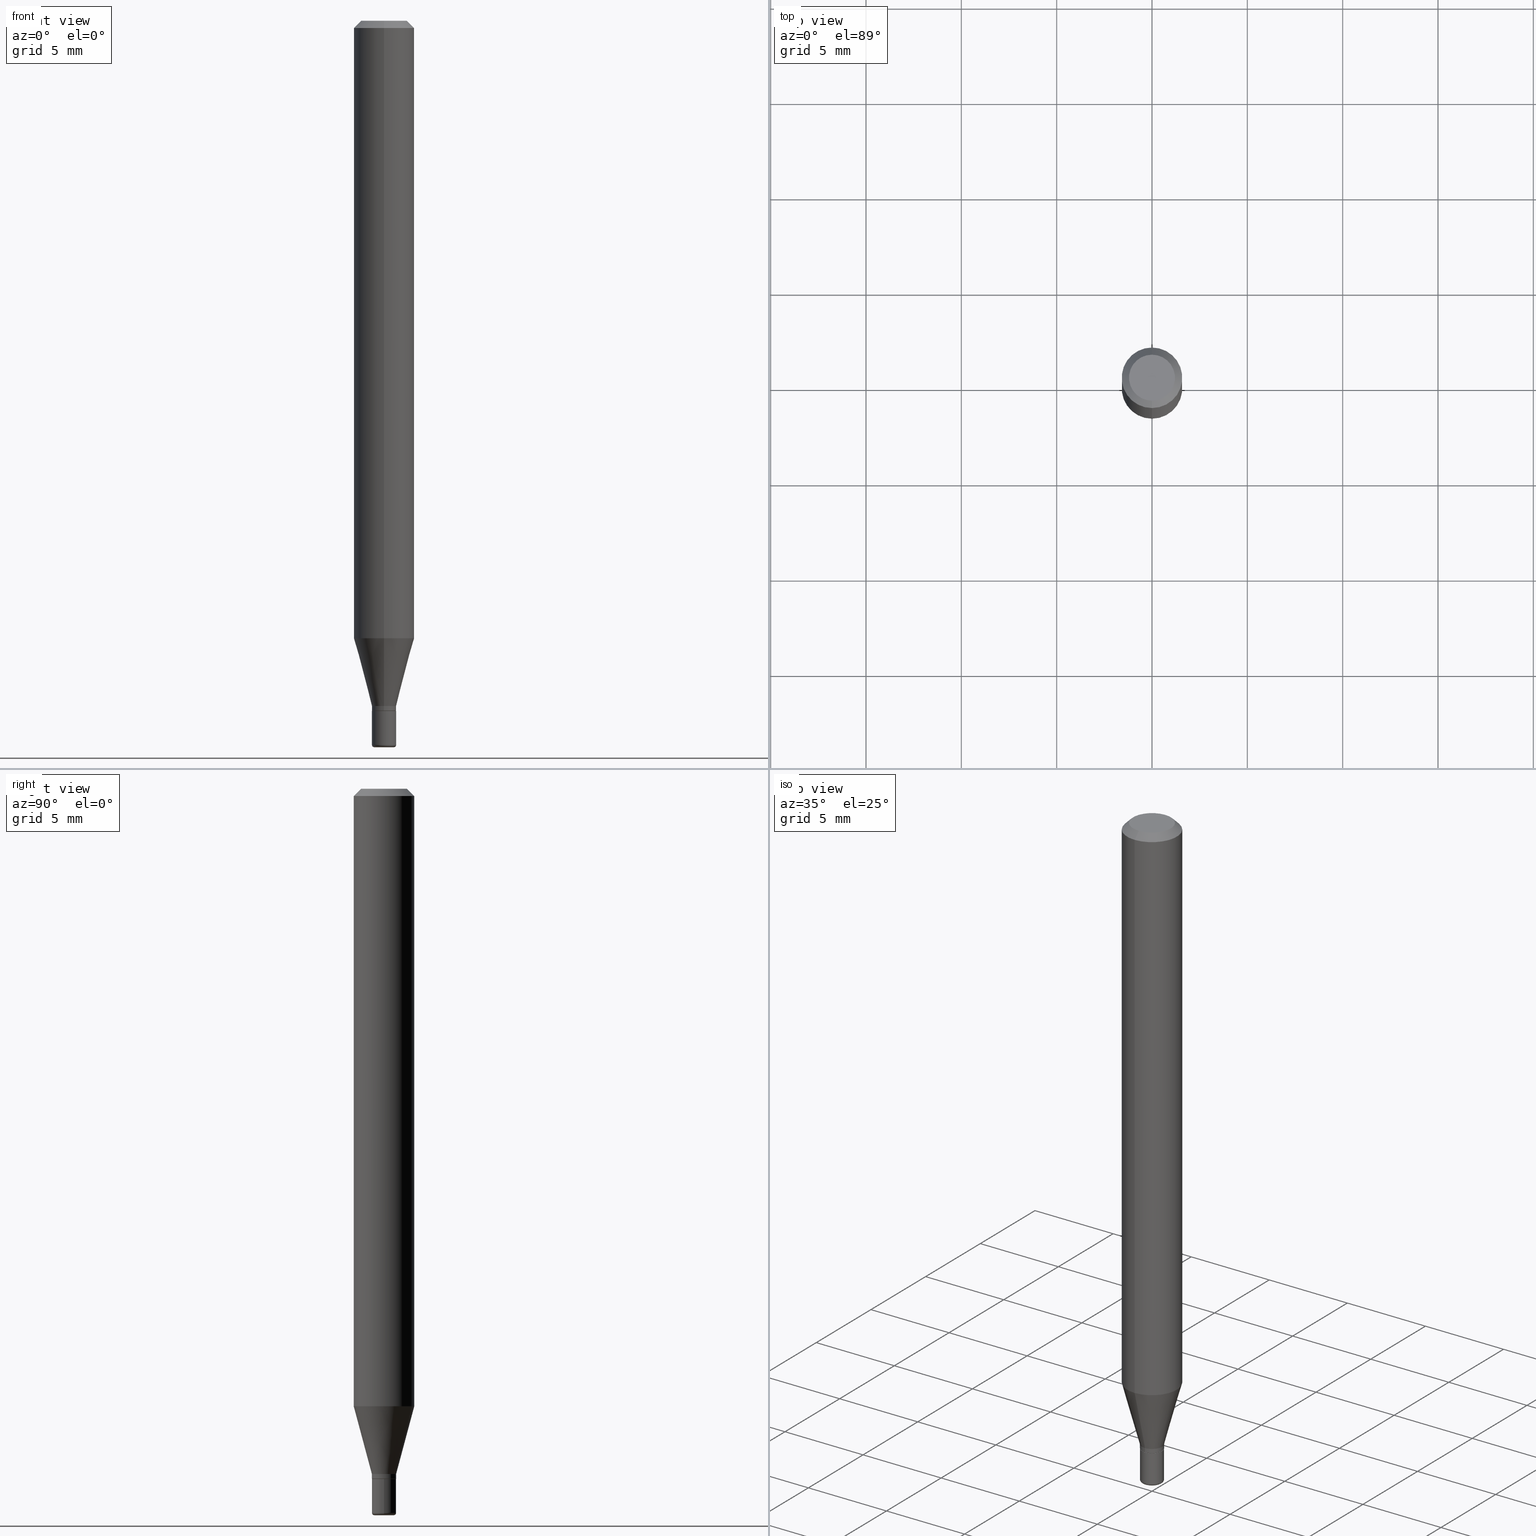
[diagram: canonical four-view strip — front | top / right | iso, engineering-drawing reading convention]
A machine part, canonical four-view strip (front | top / right | iso — engineering-drawing reading convention). The complete STEP part file that produces these views, byte-faithful:
ISO-10303-21;
HEADER;
FILE_DESCRIPTION (( 'STEP AP203' ),
    '1' );
FILE_NAME ('08662.STEP',
    '2024-02-29T20:14:09',
    ( '' ),
    ( '' ),
    'SwSTEP 2.0',
    'SolidWorks 2023',
    '' );
FILE_SCHEMA (( 'CONFIG_CONTROL_DESIGN' ));
ENDSEC;

DATA;
#1 = AXIS2_PLACEMENT_3D ( 'NONE', #361, #288, #487 ) ;
#2 = VECTOR ( 'NONE', #176, 39.37007874015748143 ) ;
#3 = PERSON_AND_ORGANIZATION ( #350, #386 ) ;
#4 = DIRECTION ( 'NONE',  ( -4.851104656540966641E-15, -0.7071067811865503483, -0.7071067811865446862 ) ) ;
#5 = PRODUCT ( '08662', '08662', '', ( #165 ) ) ;
#6 = DIRECTION ( 'NONE',  ( 0.000000000000000000, 0.000000000000000000, 1.000000000000000000 ) ) ;
#7 = DIRECTION ( 'NONE',  ( -1.000000000000000000, 7.105427357601061812E-15, 0.000000000000000000 ) ) ;
#8 = EDGE_CURVE ( 'NONE', #457, #405, #274, .T. ) ;
#9 = ORIENTED_EDGE ( 'NONE', *, *, #227, .F. ) ;
#10 = CALENDAR_DATE ( 2024, 29, 2 ) ;
#11 = CARTESIAN_POINT ( 'NONE',  ( 3.655975865246779683E-29, -5.219764601570503930E-15, -1.495000000000000329 ) ) ;
#12 = ORIENTED_EDGE ( 'NONE', *, *, #8, .T. ) ;
#13 = CLOSED_SHELL ( 'NONE', ( #187, #104, #489, #429, #193, #400, #147, #418, #481, #468, #249, #437 ) ) ;
#14 = EDGE_CURVE ( 'NONE', #474, #217, #20, .T. ) ;
#15 = CARTESIAN_POINT ( 'NONE',  ( -0.02000000000000000042, -5.068621189371588369E-15, -1.500000000000000444 ) ) ;
#16 = ORIENTED_EDGE ( 'NONE', *, *, #167, .F. ) ;
#17 = CARTESIAN_POINT ( 'NONE',  ( 1.776356839400603332E-16, 0.02499999999999516151, -1.415000000000000258 ) ) ;
#18 = EDGE_LOOP ( 'NONE', ( #232, #294 ) ) ;
#19 = CARTESIAN_POINT ( 'NONE',  ( -3.773273898774340269E-16, -0.04750000000000000749, 4.390195805009133719E-16 ) ) ;
#20 = LINE ( 'NONE', #223, #470 ) ;
#21 = AXIS2_PLACEMENT_3D ( 'NONE', #150, #34, #269 ) ;
#22 = DIRECTION ( 'NONE',  ( -2.445468806185136597E-29, 3.491481338843145583E-15, 1.000000000000000000 ) ) ;
#23 = ORIENTED_EDGE ( 'NONE', *, *, #267, .T. ) ;
#24 = DIRECTION ( 'NONE',  ( -2.445546592424236773E-29, 3.491369944521436528E-15, 1.000000000000000000 ) ) ;
#25 = APPROVAL ( #47, 'UNSPECIFIED' ) ;
#26 = ORIENTED_EDGE ( 'NONE', *, *, #339, .F. ) ;
#27 = CC_DESIGN_APPROVAL ( #342, ( #130 ) ) ;
#28 = CARTESIAN_POINT ( 'NONE',  ( 3.484903894204537597E-29, -4.975202170943048176E-15, -1.425000000000000266 ) ) ;
#29 = ORIENTED_EDGE ( 'NONE', *, *, #207, .F. ) ;
#30 = AXIS2_PLACEMENT_3D ( 'NONE', #369, #407, #198 ) ;
#31 =( CONVERSION_BASED_UNIT ( 'INCH', #469 ) LENGTH_UNIT ( ) NAMED_UNIT ( #125 ) );
#32 = AXIS2_PLACEMENT_3D ( 'NONE', #309, #389, #228 ) ;
#33 = CARTESIAN_POINT ( 'NONE',  ( 3.668319888636282221E-31, -5.237054916782051820E-17, -0.01499999999999970281 ) ) ;
#34 = DIRECTION ( 'NONE',  ( 2.445546592424236212E-29, -3.491369944521436528E-15, -1.000000000000000000 ) ) ;
#35 =( NAMED_UNIT ( * ) PLANE_ANGLE_UNIT ( ) SI_UNIT ( $, .RADIAN. ) );
#36 = ORIENTED_EDGE ( 'NONE', *, *, #207, .T. ) ;
#37 = AXIS2_PLACEMENT_3D ( 'NONE', #246, #278, #399 ) ;
#38 = APPLICATION_PROTOCOL_DEFINITION ( 'international standard', 'config_control_design', 1994, #83 ) ;
#39 = DIRECTION ( 'NONE',  ( 1.000000000000000000, -6.982962677686283277E-15, 4.883557194083118506E-29 ) ) ;
#40 = SECURITY_CLASSIFICATION_LEVEL ( 'unclassified' ) ;
#41 = DIRECTION ( 'NONE',  ( -2.445468806185136597E-29, 3.491481338843145583E-15, 1.000000000000000000 ) ) ;
#42 = CARTESIAN_POINT ( 'NONE',  ( 3.484903894204537597E-29, -4.975202170943048176E-15, -1.425000000000000266 ) ) ;
#43 = VECTOR ( 'NONE', #258, 39.37007874015748143 ) ;
#44 = CARTESIAN_POINT ( 'NONE',  ( 0.000000000000000000, 0.000000000000000000, 0.000000000000000000 ) ) ;
#45 =( GEOMETRIC_REPRESENTATION_CONTEXT ( 3 ) GLOBAL_UNCERTAINTY_ASSIGNED_CONTEXT ( ( #81 ) ) GLOBAL_UNIT_ASSIGNED_CONTEXT ( ( #31, #35, #356 ) ) REPRESENTATION_CONTEXT ( 'NONE', 'WORKASPACE' ) );
#46 = ORIENTED_EDGE ( 'NONE', *, *, #219, .F. ) ;
#47 = APPROVAL_STATUS ( 'not_yet_approved' ) ;
#48 = DIRECTION ( 'NONE',  ( -6.982962677686265922E-15, -1.000000000000000000, 0.000000000000000000 ) ) ;
#49 = DIRECTION ( 'NONE',  ( -6.982962677686265922E-15, -1.000000000000000000, 0.000000000000000000 ) ) ;
#50 = CIRCLE ( 'NONE', #422, 0.02500000000000010200 ) ;
#51 = VERTEX_POINT ( 'NONE', #388 ) ;
#52 = AXIS2_PLACEMENT_3D ( 'NONE', #376, #336, #49 ) ;
#53 = LINE ( 'NONE', #17, #95 ) ;
#54 = EDGE_LOOP ( 'NONE', ( #26, #215, #173, #143 ) ) ;
#55 = CARTESIAN_POINT ( 'NONE',  ( 3.484793048813820547E-29, -4.975360907851483175E-15, -1.425000000000000266 ) ) ;
#56 = ORIENTED_EDGE ( 'NONE', *, *, #273, .F. ) ;
#57 = DIRECTION ( 'NONE',  ( -6.982962677686265922E-15, -1.000000000000000000, 0.000000000000000000 ) ) ;
#58 = ORIENTED_EDGE ( 'NONE', *, *, #293, .T. ) ;
#59 = AXIS2_PLACEMENT_3D ( 'NONE', #174, #216, #374 ) ;
#60 = DIRECTION ( 'NONE',  ( 1.000000000000000000, -6.982962677686284065E-15, 0.000000000000000000 ) ) ;
#61 = ORIENTED_EDGE ( 'NONE', *, *, #308, .F. ) ;
#62 = DIRECTION ( 'NONE',  ( -6.982962677686265922E-15, -1.000000000000000000, 3.491369944521436528E-15 ) ) ;
#63 = ORIENTED_EDGE ( 'NONE', *, *, #134, .F. ) ;
#64 = EDGE_CURVE ( 'NONE', #244, #380, #50, .T. ) ;
#65 =( LENGTH_UNIT ( ) NAMED_UNIT ( * ) SI_UNIT ( $, .METRE. ) );
#66 = AXIS2_PLACEMENT_3D ( 'NONE', #122, #327, #48 ) ;
#67 = CYLINDRICAL_SURFACE ( 'NONE', #32, 0.02500000000000009506 ) ;
#68 = CONICAL_SURFACE ( 'NONE', #117, 0.06250000000000000000, 0.7853981633974488341 ) ;
#69 = FACE_OUTER_BOUND ( 'NONE', #18, .T. ) ;
#70 = EDGE_CURVE ( 'NONE', #103, #170, #511, .T. ) ;
#71 = ORIENTED_EDGE ( 'NONE', *, *, #321, .F. ) ;
#72 = PERSON_AND_ORGANIZATION_ROLE ( 'classification_officer' ) ;
#73 = AXIS2_PLACEMENT_3D ( 'NONE', #484, #128, #284 ) ;
#74 = DIRECTION ( 'NONE',  ( 4.937700262164550409E-15, 0.7071067811865454633, -0.7071067811865495711 ) ) ;
#75 = CC_DESIGN_PERSON_AND_ORGANIZATION_ASSIGNMENT ( #239, #112, ( #197 ) ) ;
#76 = COORDINATED_UNIVERSAL_TIME_OFFSET ( 5, 0, .BEHIND. ) ;
#77 = DIRECTION ( 'NONE',  ( -2.445546592424236492E-29, 3.491369944521436528E-15, 1.000000000000000000 ) ) ;
#78 = DIRECTION ( 'NONE',  ( 7.105427357601001859E-15, 1.000000000000000000, -3.491481338843145583E-15 ) ) ;
#79 = EDGE_CURVE ( 'NONE', #170, #334, #340, .T. ) ;
#80 = DIRECTION ( 'NONE',  ( -2.445546592424236492E-29, 3.491369944521436528E-15, 1.000000000000000000 ) ) ;
#81 = UNCERTAINTY_MEASURE_WITH_UNIT (LENGTH_MEASURE( 1.000000000000000082E-05 ), #31, 'distance_accuracy_value', 'NONE');
#82 = AXIS2_PLACEMENT_3D ( 'NONE', #460, #458, #96 ) ;
#83 = APPLICATION_CONTEXT ( 'configuration controlled 3d designs of mechanical parts and assemblies' ) ;
#84 = ORIENTED_EDGE ( 'NONE', *, *, #282, .T. ) ;
#85 = PERSON_AND_ORGANIZATION_ROLE ( 'creator' ) ;
#86 = DIRECTION ( 'NONE',  ( -2.445468806185136597E-29, 3.491481338843145583E-15, 1.000000000000000000 ) ) ;
#87 = AXIS2_PLACEMENT_3D ( 'NONE', #322, #6, #203 ) ;
#88 = ORIENTED_EDGE ( 'NONE', *, *, #279, .F. ) ;
#89 = CYLINDRICAL_SURFACE ( 'NONE', #305, 0.06250000000000000000 ) ;
#90 = ADVANCED_FACE ( 'NONE', ( #306 ), #472, .F. ) ;
#91 = MANIFOLD_SOLID_BREP ( 'Body-Move/Copy2[1]', #185 ) ;
#92 = DIRECTION ( 'NONE',  ( 1.000000000000000000, -6.982962677686254878E-15, 0.000000000000000000 ) ) ;
#93 = CIRCLE ( 'NONE', #66, 0.02500000000000009159 ) ;
#94 = ORIENTED_EDGE ( 'NONE', *, *, #236, .F. ) ;
#95 = VECTOR ( 'NONE', #341, 39.37007874015748854 ) ;
#96 = DIRECTION ( 'NONE',  ( -6.982962677686265133E-15, -1.000000000000000000, 3.491369944521436133E-15 ) ) ;
#97 = VERTEX_POINT ( 'NONE', #105 ) ;
#98 = EDGE_CURVE ( 'NONE', #457, #301, #478, .T. ) ;
#99 = DIRECTION ( 'NONE',  ( -2.445546592424236773E-29, 3.491369944521436528E-15, 1.000000000000000000 ) ) ;
#100 = ORIENTED_EDGE ( 'NONE', *, *, #219, .T. ) ;
#101 = ADVANCED_FACE ( 'NONE', ( #518 ), #240, .T. ) ;
#102 = DIRECTION ( 'NONE',  ( 1.000000000000000000, -6.982962677686283277E-15, 4.883557194083118506E-29 ) ) ;
#103 = VERTEX_POINT ( 'NONE', #206 ) ;
#104 = ADVANCED_FACE ( 'NONE', ( #443 ), #373, .T. ) ;
#105 = CARTESIAN_POINT ( 'NONE',  ( -0.02500000000000000139, -4.919927070770967954E-15, -1.425000000000000266 ) ) ;
#106 = PRODUCT_RELATED_PRODUCT_CATEGORY ( 'detail', '', ( #5 ) ) ;
#107 = DIRECTION ( 'NONE',  ( -2.445546592424236492E-29, 3.491369944521436528E-15, 1.000000000000000000 ) ) ;
#108 = CIRCLE ( 'NONE', #115, 0.02500000000000000139 ) ;
#109 = AXIS2_PLACEMENT_3D ( 'NONE', #507, #148, #392 ) ;
#110 = CARTESIAN_POINT ( 'NONE',  ( 3.582686580359767159E-29, -5.359686688179454114E-15, -1.500000000000000444 ) ) ;
#111 = EDGE_CURVE ( 'NONE', #343, #132, #438, .T. ) ;
#112 = PERSON_AND_ORGANIZATION_ROLE ( 'design_supplier' ) ;
#113 = ORIENTED_EDGE ( 'NONE', *, *, #14, .F. ) ;
#114 = APPROVAL_ROLE ( '' ) ;
#115 = AXIS2_PLACEMENT_3D ( 'NONE', #201, #41, #238 ) ;
#116 = CARTESIAN_POINT ( 'NONE',  ( 0.000000000000000000, 0.000000000000000000, 0.000000000000000000 ) ) ;
#117 = AXIS2_PLACEMENT_3D ( 'NONE', #430, #261, #427 ) ;
#118 = DATE_AND_TIME ( #365, #409 ) ;
#119 = FACE_OUTER_BOUND ( 'NONE', #425, .T. ) ;
#120 = ADVANCED_FACE ( 'NONE', ( #402 ), #190, .T. ) ;
#121 = APPROVAL_ROLE ( '' ) ;
#122 = CARTESIAN_POINT ( 'NONE',  ( 3.483681120908324643E-29, -4.973456485970787221E-15, -1.424500000000000099 ) ) ;
#123 = ORIENTED_EDGE ( 'NONE', *, *, #508, .T. ) ;
#124 = DIRECTION ( 'NONE',  ( -2.445546592424236492E-29, 3.491369944521436528E-15, 1.000000000000000000 ) ) ;
#125 = DIMENSIONAL_EXPONENTS ( 1.000000000000000000, 0.000000000000000000, 0.000000000000000000, 0.000000000000000000, 0.000000000000000000, 0.000000000000000000, 0.000000000000000000 ) ;
#126 = ORIENTED_EDGE ( 'NONE', *, *, #127, .T. ) ;
#127 = EDGE_CURVE ( 'NONE', #132, #97, #195, .T. ) ;
#128 = DIRECTION ( 'NONE',  ( -2.445468806185136597E-29, 3.491481338843145583E-15, 1.000000000000000000 ) ) ;
#129 = ORIENTED_EDGE ( 'NONE', *, *, #8, .F. ) ;
#130 = PRODUCT_DEFINITION ( 'UNKNOWN', '', #197, #431 ) ;
#131 = DIRECTION ( 'NONE',  ( -6.982962677686265922E-15, -1.000000000000000000, 3.483106191921935554E-15 ) ) ;
#132 = VERTEX_POINT ( 'NONE', #166 ) ;
#133 = DIRECTION ( 'NONE',  ( -2.445468806185136597E-29, 3.491481338843145583E-15, 1.000000000000000000 ) ) ;
#134 = EDGE_CURVE ( 'NONE', #170, #103, #403, .T. ) ;
#135 = VECTOR ( 'NONE', #332, 39.37007874015748143 ) ;
#136 = ORIENTED_EDGE ( 'NONE', *, *, #267, .F. ) ;
#137 = CIRCLE ( 'NONE', #109, 0.06250000000000000000 ) ;
#138 = CARTESIAN_POINT ( 'NONE',  ( 1.745740669421915009E-16, 0.02499999999999502620, -1.425000000000000266 ) ) ;
#139 = CC_DESIGN_PERSON_AND_ORGANIZATION_ASSIGNMENT ( #280, #85, ( #130 ) ) ;
#140 = DIRECTION ( 'NONE',  ( 1.000000000000000000, -6.982962677686265922E-15, 4.876176775795935793E-29 ) ) ;
#141 = CARTESIAN_POINT ( 'NONE',  ( 3.655975865246779122E-29, -5.219764601570503141E-15, -1.495000000000000107 ) ) ;
#142 = ADVANCED_BREP_SHAPE_REPRESENTATION ( '08662', ( #91, #441, #87 ), #45 ) ;
#143 = ORIENTED_EDGE ( 'NONE', *, *, #450, .F. ) ;
#144 = CARTESIAN_POINT ( 'NONE',  ( -4.364351673553912750E-16, -0.06250000000000005551, -0.01499999999999948597 ) ) ;
#145 = ORIENTED_EDGE ( 'NONE', *, *, #111, .F. ) ;
#146 = CONICAL_SURFACE ( 'NONE', #276, 0.02500000000000010200, 0.2617993877991493523 ) ;
#147 = ADVANCED_FACE ( 'NONE', ( #119 ), #89, .T. ) ;
#148 = DIRECTION ( 'NONE',  ( -2.445546592424236492E-29, 3.491369944521436528E-15, 1.000000000000000000 ) ) ;
#149 = CC_DESIGN_APPROVAL ( #466, ( #372 ) ) ;
#150 = CARTESIAN_POINT ( 'NONE',  ( 3.316907271900976589E-16, 0.04750000000000000749, -2.925031829669569822E-17 ) ) ;
#151 = DIRECTION ( 'NONE',  ( 2.445546592424236492E-29, -3.491369944521436528E-15, -1.000000000000000000 ) ) ;
#152 = EDGE_CURVE ( 'NONE', #178, #97, #108, .T. ) ;
#153 = CC_DESIGN_APPROVAL ( #25, ( #197 ) ) ;
#154 = CONICAL_SURFACE ( 'NONE', #412, 0.02450000000000009115, 0.7853981633972775267 ) ;
#155 = DIRECTION ( 'NONE',  ( -2.445546592424236492E-29, 3.491369944521436528E-15, 1.000000000000000000 ) ) ;
#156 = DIRECTION ( 'NONE',  ( -2.445546592424236492E-29, 3.491369944521436528E-15, 1.000000000000000000 ) ) ;
#157 = ORIENTED_EDGE ( 'NONE', *, *, #152, .T. ) ;
#158 = LOCAL_TIME ( 15, 14, 9.000000000000000000, #245 ) ;
#159 = DIRECTION ( 'NONE',  ( -6.982962677686265922E-15, -1.000000000000000000, 0.000000000000000000 ) ) ;
#160 = APPROVAL_DATE_TIME ( #517, #466 ) ;
#161 = CARTESIAN_POINT ( 'NONE',  ( 3.118189523210138983E-29, -4.451664595711349999E-15, -1.275048094716167757 ) ) ;
#162 = AXIS2_PLACEMENT_3D ( 'NONE', #270, #347, #349 ) ;
#163 = CARTESIAN_POINT ( 'NONE',  ( -1.745740669421230426E-16, -0.02500000000000515352, -1.424500000000000099 ) ) ;
#164 = VERTEX_POINT ( 'NONE', #516 ) ;
#165 = MECHANICAL_CONTEXT ( 'NONE', #331, 'mechanical' ) ;
#166 = CARTESIAN_POINT ( 'NONE',  ( -0.02500000000000017833, -4.919927070770967165E-15, -1.495000000000000329 ) ) ;
#167 = EDGE_CURVE ( 'NONE', #132, #343, #275, .T. ) ;
#168 = EDGE_LOOP ( 'NONE', ( #9, #36, #335, #129 ) ) ;
#169 = DIRECTION ( 'NONE',  ( -6.982962677686265922E-15, -1.000000000000000000, 3.491369944521436528E-15 ) ) ;
#170 = VERTEX_POINT ( 'NONE', #448 ) ;
#171 = CC_DESIGN_PERSON_AND_ORGANIZATION_ASSIGNMENT ( #473, #515, ( #197 ) ) ;
#172 = CARTESIAN_POINT ( 'NONE',  ( -1.745740669421573087E-16, -0.02500000000000009506, 8.728424861303625339E-17 ) ) ;
#173 = ORIENTED_EDGE ( 'NONE', *, *, #14, .T. ) ;
#174 = CARTESIAN_POINT ( 'NONE',  ( 3.484903894204537597E-29, -4.975202170943048176E-15, -1.425000000000000266 ) ) ;
#175 = ORIENTED_EDGE ( 'NONE', *, *, #64, .F. ) ;
#176 = DIRECTION ( 'NONE',  ( -2.445546592424236773E-29, 3.491369944521436528E-15, 1.000000000000000000 ) ) ;
#177 = VECTOR ( 'NONE', #74, 39.37007874015748143 ) ;
#178 = VERTEX_POINT ( 'NONE', #323 ) ;
#179 = AXIS2_PLACEMENT_3D ( 'NONE', #256, #498, #381 ) ;
#180 = LINE ( 'NONE', #218, #479 ) ;
#181 = EDGE_LOOP ( 'NONE', ( #136, #491, #375, #415 ) ) ;
#182 = CARTESIAN_POINT ( 'NONE',  ( 3.108624468950771410E-16, 0.02499999999999516151, -1.415000000000000258 ) ) ;
#183 = DIRECTION ( 'NONE',  ( -4.937700262163704750E-15, -0.7071067811864243380, 0.7071067811866706965 ) ) ;
#184 = FACE_OUTER_BOUND ( 'NONE', #260, .T. ) ;
#185 = CLOSED_SHELL ( 'NONE', ( #354, #447, #370, #101, #120, #90 ) ) ;
#186 = AXIS2_PLACEMENT_3D ( 'NONE', #141, #22, #102 ) ;
#187 = ADVANCED_FACE ( 'NONE', ( #397 ), #319, .T. ) ;
#188 = DIRECTION ( 'NONE',  ( -2.445546592424236492E-29, 3.491369944521436528E-15, 1.000000000000000000 ) ) ;
#189 = ORIENTED_EDGE ( 'NONE', *, *, #264, .T. ) ;
#190 = TOROIDAL_SURFACE ( 'NONE', #486, 0.02000000000000000042, 0.005000000000000179648 ) ;
#191 = FACE_OUTER_BOUND ( 'NONE', #411, .T. ) ;
#192 = EDGE_LOOP ( 'NONE', ( #157, #58 ) ) ;
#193 = ADVANCED_FACE ( 'NONE', ( #281 ), #463, .T. ) ;
#194 = DATE_AND_TIME ( #396, #432 ) ;
#195 = LINE ( 'NONE', #440, #252 ) ;
#196 = EDGE_CURVE ( 'NONE', #291, #132, #259, .T. ) ;
#197 = PRODUCT_DEFINITION_FORMATION_WITH_SPECIFIED_SOURCE ( 'ANY', '', #5, .NOT_KNOWN. ) ;
#198 = DIRECTION ( 'NONE',  ( 1.000000000000000000, -6.982962677686283277E-15, 0.000000000000000000 ) ) ;
#199 = APPROVAL_DATE_TIME ( #118, #342 ) ;
#200 = AXIS2_PLACEMENT_3D ( 'NONE', #442, #78, #7 ) ;
#201 = CARTESIAN_POINT ( 'NONE',  ( 3.484793048813820547E-29, -4.975360907851483175E-15, -1.425000000000000266 ) ) ;
#202 = CIRCLE ( 'NONE', #179, 0.005000000000000177046 ) ;
#203 = DIRECTION ( 'NONE',  ( 1.000000000000000000, 0.000000000000000000, 0.000000000000000000 ) ) ;
#204 = DIRECTION ( 'NONE',  ( -2.445468806185136597E-29, 3.491481338843145583E-15, 1.000000000000000000 ) ) ;
#205 = COORDINATED_UNIVERSAL_TIME_OFFSET ( 5, 0, .BEHIND. ) ;
#206 = CARTESIAN_POINT ( 'NONE',  ( 4.440892098500935790E-16, 0.06249999999999553135, -1.275048094716167979 ) ) ;
#207 = EDGE_CURVE ( 'NONE', #301, #334, #364, .T. ) ;
#208 = DIRECTION ( 'NONE',  ( -1.807323732225323434E-15, -0.2588190451025172423, 0.9659258262890690894 ) ) ;
#209 = AXIS2_PLACEMENT_3D ( 'NONE', #116, #124, #477 ) ;
#210 = CIRCLE ( 'NONE', #363, 0.02500000000000010200 ) ;
#211 = ORIENTED_EDGE ( 'NONE', *, *, #339, .T. ) ;
#212 = LINE ( 'NONE', #292, #135 ) ;
#213 = ORIENTED_EDGE ( 'NONE', *, *, #222, .F. ) ;
#214 = LINE ( 'NONE', #299, #445 ) ;
#215 = ORIENTED_EDGE ( 'NONE', *, *, #346, .T. ) ;
#216 = DIRECTION ( 'NONE',  ( -2.445546592424236492E-29, 3.491369944521436528E-15, 1.000000000000000000 ) ) ;
#217 = VERTEX_POINT ( 'NONE', #163 ) ;
#218 = CARTESIAN_POINT ( 'NONE',  ( 4.440892098500625669E-16, 0.06250000000000000000, -2.182106215325897830E-16 ) ) ;
#219 = EDGE_CURVE ( 'NONE', #217, #164, #93, .T. ) ;
#220 = DIRECTION ( 'NONE',  ( -6.982962677686265922E-15, -1.000000000000000000, 0.000000000000000000 ) ) ;
#221 = CARTESIAN_POINT ( 'NONE',  ( 0.000000000000000000, 0.000000000000000000, 0.000000000000000000 ) ) ;
#222 = EDGE_CURVE ( 'NONE', #291, #51, #296, .T. ) ;
#223 = CARTESIAN_POINT ( 'NONE',  ( -1.710825856032792959E-16, -0.02450000000000506634, -1.425000000000000266 ) ) ;
#224 = CYLINDRICAL_SURFACE ( 'NONE', #253, 0.06250000000000000000 ) ;
#225 = AXIS2_PLACEMENT_3D ( 'NONE', #110, #497, #140 ) ;
#226 = AXIS2_PLACEMENT_3D ( 'NONE', #33, #151, #433 ) ;
#227 = EDGE_CURVE ( 'NONE', #301, #457, #266, .T. ) ;
#228 = DIRECTION ( 'NONE',  ( -6.982962677686265922E-15, -1.000000000000000000, 3.491369944521436922E-15 ) ) ;
#229 = CC_DESIGN_DATE_AND_TIME_ASSIGNMENT ( #406, #277, ( #130 ) ) ;
#230 = FACE_OUTER_BOUND ( 'NONE', #181, .T. ) ;
#231 = CARTESIAN_POINT ( 'NONE',  ( -1.710825856032792959E-16, -0.02450000000000506634, -1.425000000000000266 ) ) ;
#232 = ORIENTED_EDGE ( 'NONE', *, *, #98, .T. ) ;
#233 = AXIS2_PLACEMENT_3D ( 'NONE', #500, #248, #131 ) ;
#234 = COORDINATED_UNIVERSAL_TIME_OFFSET ( 5, 0, .BEHIND. ) ;
#235 = EDGE_LOOP ( 'NONE', ( #289, #357, #145, #513 ) ) ;
#236 = EDGE_CURVE ( 'NONE', #343, #178, #212, .T. ) ;
#237 = CALENDAR_DATE ( 2024, 29, 2 ) ;
#238 = DIRECTION ( 'NONE',  ( 1.000000000000000000, -6.982962677686254878E-15, 0.000000000000000000 ) ) ;
#239 = PERSON_AND_ORGANIZATION ( #350, #386 ) ;
#240 = CYLINDRICAL_SURFACE ( 'NONE', #73, 0.02500000000000009159 ) ;
#241 = SHAPE_DEFINITION_REPRESENTATION ( #444, #142 ) ;
#242 = EDGE_CURVE ( 'NONE', #51, #291, #362, .T. ) ;
#243 = DIRECTION ( 'NONE',  ( 1.000000000000000000, -6.982962677686283277E-15, 0.000000000000000000 ) ) ;
#244 = VERTEX_POINT ( 'NONE', #255 ) ;
#245 = COORDINATED_UNIVERSAL_TIME_OFFSET ( 5, 0, .BEHIND. ) ;
#246 = CARTESIAN_POINT ( 'NONE',  ( 3.460448428280295330E-29, -4.940288471497833014E-15, -1.415000000000000258 ) ) ;
#247 = ORIENTED_EDGE ( 'NONE', *, *, #64, .T. ) ;
#248 = DIRECTION ( 'NONE',  ( -2.445546592424236492E-29, 3.491369944521436528E-15, 1.000000000000000000 ) ) ;
#249 = ADVANCED_FACE ( 'NONE', ( #416 ), #154, .T. ) ;
#250 = ORIENTED_EDGE ( 'NONE', *, *, #70, .F. ) ;
#251 = LINE ( 'NONE', #414, #43 ) ;
#252 = VECTOR ( 'NONE', #366, 39.37007874015748143 ) ;
#253 = AXIS2_PLACEMENT_3D ( 'NONE', #221, #188, #62 ) ;
#254 = EDGE_LOOP ( 'NONE', ( #325, #434, #84, #16 ) ) ;
#255 = CARTESIAN_POINT ( 'NONE',  ( -1.745740669421227467E-16, -0.02500000000000503902, -1.415000000000000258 ) ) ;
#256 = CARTESIAN_POINT ( 'NONE',  ( 0.02000000000000000042, -5.359423855124228949E-15, -1.495000000000000107 ) ) ;
#257 = ORIENTED_EDGE ( 'NONE', *, *, #98, .F. ) ;
#258 = DIRECTION ( 'NONE',  ( 5.024295867787204109E-15, 0.7071067811864292230, 0.7071067811866658115 ) ) ;
#259 = CIRCLE ( 'NONE', #200, 0.005000000000000177046 ) ;
#260 = EDGE_LOOP ( 'NONE', ( #29, #257, #12, #499 ) ) ;
#261 = DIRECTION ( 'NONE',  ( 2.445546592424236492E-29, -3.491369944521436528E-15, -1.000000000000000000 ) ) ;
#262 = EDGE_LOOP ( 'NONE', ( #377, #211, #46, #113 ) ) ;
#263 = FACE_OUTER_BOUND ( 'NONE', #328, .T. ) ;
#264 = EDGE_CURVE ( 'NONE', #244, #170, #302, .T. ) ;
#265 = CARTESIAN_POINT ( 'NONE',  ( 4.440892098500939734E-16, 0.06249999999999995143, -0.01499999999999992138 ) ) ;
#266 = CIRCLE ( 'NONE', #82, 0.04750000000000000749 ) ;
#267 = EDGE_CURVE ( 'NONE', #164, #380, #214, .T. ) ;
#268 = AXIS2_PLACEMENT_3D ( 'NONE', #393, #155, #315 ) ;
#269 = DIRECTION ( 'NONE',  ( 6.982962677686265922E-15, 1.000000000000000000, -3.491369944521436528E-15 ) ) ;
#270 = CARTESIAN_POINT ( 'NONE',  ( 0.000000000000000000, 0.000000000000000000, 0.000000000000000000 ) ) ;
#271 = ORIENTED_EDGE ( 'NONE', *, *, #70, .T. ) ;
#272 = PERSON_AND_ORGANIZATION ( #350, #386 ) ;
#273 = EDGE_CURVE ( 'NONE', #474, #464, #287, .T. ) ;
#274 = LINE ( 'NONE', #436, #177 ) ;
#275 = CIRCLE ( 'NONE', #30, 0.02500000000000017833 ) ;
#276 = AXIS2_PLACEMENT_3D ( 'NONE', #410, #313, #311 ) ;
#277 = DATE_TIME_ROLE ( 'creation_date' ) ;
#278 = DIRECTION ( 'NONE',  ( -2.445546592424236492E-29, 3.491369944521436528E-15, 1.000000000000000000 ) ) ;
#279 = EDGE_CURVE ( 'NONE', #334, #405, #355, .T. ) ;
#280 = PERSON_AND_ORGANIZATION ( #350, #386 ) ;
#281 = FACE_OUTER_BOUND ( 'NONE', #385, .T. ) ;
#282 = EDGE_CURVE ( 'NONE', #51, #343, #202, .T. ) ;
#283 = CALENDAR_DATE ( 2024, 29, 2 ) ;
#284 = DIRECTION ( 'NONE',  ( 1.000000000000000000, -6.982962677686266711E-15, 4.876176775795936353E-29 ) ) ;
#285 = ORIENTED_EDGE ( 'NONE', *, *, #167, .T. ) ;
#286 = APPLICATION_PROTOCOL_DEFINITION ( 'international standard', 'config_control_design', 1994, #331 ) ;
#287 = CIRCLE ( 'NONE', #59, 0.02450000000000009115 ) ;
#288 = DIRECTION ( 'NONE',  ( -2.445546592424236492E-29, 3.491369944521436528E-15, 1.000000000000000000 ) ) ;
#289 = ORIENTED_EDGE ( 'NONE', *, *, #242, .T. ) ;
#290 = DIRECTION ( 'NONE',  ( -2.445468806185136597E-29, 3.491481338843145583E-15, 1.000000000000000000 ) ) ;
#291 = VERTEX_POINT ( 'NONE', #15 ) ;
#292 = CARTESIAN_POINT ( 'NONE',  ( 0.02500000000000009159, -1.745740669421573087E-16, 1.219044193948988502E-30 ) ) ;
#293 = EDGE_CURVE ( 'NONE', #97, #178, #413, .T. ) ;
#294 = ORIENTED_EDGE ( 'NONE', *, *, #227, .T. ) ;
#295 = CARTESIAN_POINT ( 'NONE',  ( 0.02500000000000017833, -5.394338668512662175E-15, -1.495000000000000329 ) ) ;
#296 = CIRCLE ( 'NONE', #390, 0.02000000000000000042 ) ;
#297 = TOROIDAL_SURFACE ( 'NONE', #186, 0.02000000000000000042, 0.005000000000000179648 ) ;
#298 = EDGE_LOOP ( 'NONE', ( #100, #23, #175, #61 ) ) ;
#299 = CARTESIAN_POINT ( 'NONE',  ( 1.776356839400256973E-16, 0.02500000000000009506, -8.728424861303625339E-17 ) ) ;
#300 = CC_DESIGN_SECURITY_CLASSIFICATION ( #372, ( #197 ) ) ;
#301 = VERTEX_POINT ( 'NONE', #19 ) ;
#302 = LINE ( 'NONE', #453, #382 ) ;
#303 = ORIENTED_EDGE ( 'NONE', *, *, #79, .T. ) ;
#304 = CARTESIAN_POINT ( 'NONE',  ( 3.484903894204537597E-29, -4.975202170943048176E-15, -1.425000000000000266 ) ) ;
#305 = AXIS2_PLACEMENT_3D ( 'NONE', #44, #77, #169 ) ;
#306 = FACE_OUTER_BOUND ( 'NONE', #330, .T. ) ;
#307 = CARTESIAN_POINT ( 'NONE',  ( 3.460448428280295330E-29, -4.940288471497833014E-15, -1.415000000000000258 ) ) ;
#308 = EDGE_CURVE ( 'NONE', #217, #244, #419, .T. ) ;
#309 = CARTESIAN_POINT ( 'NONE',  ( 0.000000000000000000, 0.000000000000000000, 0.000000000000000000 ) ) ;
#310 = APPROVAL_PERSON_ORGANIZATION ( #326, #342, #114 ) ;
#311 = DIRECTION ( 'NONE',  ( -6.982962677686265922E-15, -1.000000000000000000, 0.000000000000000000 ) ) ;
#312 = VECTOR ( 'NONE', #4, 39.37007874015748143 ) ;
#313 = DIRECTION ( 'NONE',  ( -2.445546592424236492E-29, 3.491369944521436528E-15, 1.000000000000000000 ) ) ;
#314 = DIRECTION ( 'NONE',  ( -6.982962677686265922E-15, -1.000000000000000000, 4.370956789862821150E-15 ) ) ;
#315 = DIRECTION ( 'NONE',  ( -6.982962677686265922E-15, -1.000000000000000000, 0.000000000000000000 ) ) ;
#316 = ORIENTED_EDGE ( 'NONE', *, *, #242, .F. ) ;
#317 = CC_DESIGN_DATE_AND_TIME_ASSIGNMENT ( #194, #358, ( #372 ) ) ;
#318 = APPROVAL_STATUS ( 'not_yet_approved' ) ;
#319 = CYLINDRICAL_SURFACE ( 'NONE', #209, 0.02500000000000009506 ) ;
#320 = DIRECTION ( 'NONE',  ( -6.982962677686265922E-15, -1.000000000000000000, 4.370956789862821150E-15 ) ) ;
#321 = EDGE_CURVE ( 'NONE', #380, #103, #53, .T. ) ;
#322 = CARTESIAN_POINT ( 'NONE',  ( 0.000000000000000000, 0.000000000000000000, 0.000000000000000000 ) ) ;
#323 = CARTESIAN_POINT ( 'NONE',  ( 0.02500000000000000139, -5.149934974793639843E-15, -1.425000000000000266 ) ) ;
#324 = CC_DESIGN_PERSON_AND_ORGANIZATION_ASSIGNMENT ( #446, #476, ( #5 ) ) ;
#325 = ORIENTED_EDGE ( 'NONE', *, *, #196, .F. ) ;
#326 = PERSON_AND_ORGANIZATION ( #350, #386 ) ;
#327 = DIRECTION ( 'NONE',  ( -2.445546592424236492E-29, 3.491369944521436528E-15, 1.000000000000000000 ) ) ;
#328 = EDGE_LOOP ( 'NONE', ( #56, #449 ) ) ;
#329 = CARTESIAN_POINT ( 'NONE',  ( 3.668203209277706016E-29, -5.237222008264719754E-15, -1.500000000000000444 ) ) ;
#330 = EDGE_LOOP ( 'NONE', ( #316, #213 ) ) ;
#331 = APPLICATION_CONTEXT ( 'configuration controlled 3d designs of mechanical parts and assemblies' ) ;
#332 = DIRECTION ( 'NONE',  ( -2.445468806185136877E-29, 3.491481338843145188E-15, 1.000000000000000000 ) ) ;
#333 = APPROVAL_PERSON_ORGANIZATION ( #3, #466, #360 ) ;
#334 = VERTEX_POINT ( 'NONE', #144 ) ;
#335 = ORIENTED_EDGE ( 'NONE', *, *, #279, .T. ) ;
#336 = DIRECTION ( 'NONE',  ( -2.445546592424236492E-29, 3.491369944521436528E-15, 1.000000000000000000 ) ) ;
#337 = AXIS2_PLACEMENT_3D ( 'NONE', #161, #359, #320 ) ;
#338 = CIRCLE ( 'NONE', #52, 0.02450000000000009115 ) ;
#339 = EDGE_CURVE ( 'NONE', #464, #164, #251, .T. ) ;
#340 = LINE ( 'NONE', #345, #428 ) ;
#341 = DIRECTION ( 'NONE',  ( 1.839019923739593610E-15, 0.2588190451025240146, 0.9659258262890673130 ) ) ;
#342 = APPROVAL ( #483, 'UNSPECIFIED' ) ;
#343 = VERTEX_POINT ( 'NONE', #295 ) ;
#344 = FACE_OUTER_BOUND ( 'NONE', #461, .T. ) ;
#345 = CARTESIAN_POINT ( 'NONE',  ( -4.364351673553916201E-16, -0.06250000000000000000, 2.182106215325897830E-16 ) ) ;
#346 = EDGE_CURVE ( 'NONE', #464, #474, #338, .T. ) ;
#347 = DIRECTION ( 'NONE',  ( -2.445468806185136597E-29, 3.491481338843145583E-15, 1.000000000000000000 ) ) ;
#348 = AXIS2_PLACEMENT_3D ( 'NONE', #11, #86, #243 ) ;
#349 = DIRECTION ( 'NONE',  ( 1.000000000000000000, -6.982962677686266711E-15, 4.876176775795936353E-29 ) ) ;
#350 = PERSON ( 'UNSPECIFIED', 'UNSPECIFIED', 'UNSPECIFIED', ('UNSPECIFIED'), ('UNSPECIFIED'), ('UNSPECIFIED') ) ;
#351 = PLANE ( 'NONE',  #21 ) ;
#352 = CYLINDRICAL_SURFACE ( 'NONE', #162, 0.02500000000000009159 ) ;
#353 = CARTESIAN_POINT ( 'NONE',  ( 3.460448428280295330E-29, -4.940288471497833014E-15, -1.415000000000000258 ) ) ;
#354 = ADVANCED_FACE ( 'NONE', ( #384 ), #297, .T. ) ;
#355 = CIRCLE ( 'NONE', #233, 0.06250000000000000000 ) ;
#356 =( NAMED_UNIT ( * ) SI_UNIT ( $, .STERADIAN. ) SOLID_ANGLE_UNIT ( ) );
#357 = ORIENTED_EDGE ( 'NONE', *, *, #196, .T. ) ;
#358 = DATE_TIME_ROLE ( 'classification_date' ) ;
#359 = DIRECTION ( 'NONE',  ( -2.445546592424236492E-29, 3.491369944521436528E-15, 1.000000000000000000 ) ) ;
#360 = APPROVAL_ROLE ( '' ) ;
#361 = CARTESIAN_POINT ( 'NONE',  ( -6.680732152424787162E-45, 9.537707241656864652E-31, 2.731795081361451486E-16 ) ) ;
#362 = CIRCLE ( 'NONE', #503, 0.02000000000000000042 ) ;
#363 = AXIS2_PLACEMENT_3D ( 'NONE', #307, #107, #512 ) ;
#364 = LINE ( 'NONE', #480, #312 ) ;
#365 = CALENDAR_DATE ( 2024, 29, 2 ) ;
#366 = DIRECTION ( 'NONE',  ( -2.445468806185136877E-29, 3.491481338843145188E-15, 1.000000000000000000 ) ) ;
#367 = ORIENTED_EDGE ( 'NONE', *, *, #514, .F. ) ;
#368 = PERSON_AND_ORGANIZATION ( #350, #386 ) ;
#369 = CARTESIAN_POINT ( 'NONE',  ( 3.655975865246779683E-29, -5.219764601570503930E-15, -1.495000000000000329 ) ) ;
#370 = ADVANCED_FACE ( 'NONE', ( #421 ), #496, .F. ) ;
#371 = ORIENTED_EDGE ( 'NONE', *, *, #236, .T. ) ;
#372 = SECURITY_CLASSIFICATION ( '', '', #40 ) ;
#373 = CONICAL_SURFACE ( 'NONE', #395, 0.02450000000000009115, 0.7853981633972775267 ) ;
#374 = DIRECTION ( 'NONE',  ( -6.982962677686265922E-15, -1.000000000000000000, 0.000000000000000000 ) ) ;
#375 = ORIENTED_EDGE ( 'NONE', *, *, #308, .T. ) ;
#376 = CARTESIAN_POINT ( 'NONE',  ( 3.484903894204537597E-29, -4.975202170943048176E-15, -1.425000000000000266 ) ) ;
#377 = ORIENTED_EDGE ( 'NONE', *, *, #273, .T. ) ;
#378 = EDGE_CURVE ( 'NONE', #103, #405, #180, .T. ) ;
#379 = DIRECTION ( 'NONE',  ( -2.445468806185136597E-29, 3.491481338843145583E-15, 1.000000000000000000 ) ) ;
#380 = VERTEX_POINT ( 'NONE', #182 ) ;
#381 = DIRECTION ( 'NONE',  ( 1.000000000000000000, -6.982962677686280121E-15, 0.000000000000000000 ) ) ;
#382 = VECTOR ( 'NONE', #208, 39.37007874015748854 ) ;
#383 = ORIENTED_EDGE ( 'NONE', *, *, #378, .T. ) ;
#384 = FACE_OUTER_BOUND ( 'NONE', #235, .T. ) ;
#385 = EDGE_LOOP ( 'NONE', ( #247, #420, #63, #485 ) ) ;
#386 = ORGANIZATION ( 'UNSPECIFIED', 'UNSPECIFIED', '' ) ;
#387 = FACE_OUTER_BOUND ( 'NONE', #394, .T. ) ;
#388 = CARTESIAN_POINT ( 'NONE',  ( 0.02000000000000000042, -5.376881261818445562E-15, -1.500000000000000444 ) ) ;
#389 = DIRECTION ( 'NONE',  ( -2.445546592424236492E-29, 3.491369944521436528E-15, 1.000000000000000000 ) ) ;
#390 = AXIS2_PLACEMENT_3D ( 'NONE', #329, #290, #451 ) ;
#391 = AXIS2_PLACEMENT_3D ( 'NONE', #28, #471, #424 ) ;
#392 = DIRECTION ( 'NONE',  ( -6.982962677686265922E-15, -1.000000000000000000, 3.483106191921935554E-15 ) ) ;
#393 = CARTESIAN_POINT ( 'NONE',  ( 3.483681120908324643E-29, -4.973456485970787221E-15, -1.424500000000000099 ) ) ;
#394 = EDGE_LOOP ( 'NONE', ( #452, #126, #408, #94 ) ) ;
#395 = AXIS2_PLACEMENT_3D ( 'NONE', #42, #80, #159 ) ;
#396 = CALENDAR_DATE ( 2024, 29, 2 ) ;
#397 = FACE_OUTER_BOUND ( 'NONE', #298, .T. ) ;
#398 = DATE_AND_TIME ( #10, #426 ) ;
#399 = DIRECTION ( 'NONE',  ( -6.982962677686265922E-15, -1.000000000000000000, 0.000000000000000000 ) ) ;
#400 = ADVANCED_FACE ( 'NONE', ( #344 ), #146, .T. ) ;
#401 = COORDINATED_UNIVERSAL_TIME_OFFSET ( 5, 0, .BEHIND. ) ;
#402 = FACE_OUTER_BOUND ( 'NONE', #254, .T. ) ;
#403 = CIRCLE ( 'NONE', #337, 0.06250000000000000000 ) ;
#404 = CARTESIAN_POINT ( 'NONE',  ( 3.655975865246779122E-29, -5.219764601570503141E-15, -1.495000000000000107 ) ) ;
#405 = VERTEX_POINT ( 'NONE', #265 ) ;
#406 = DATE_AND_TIME ( #237, #158 ) ;
#407 = DIRECTION ( 'NONE',  ( -2.445468806185136597E-29, 3.491481338843145583E-15, 1.000000000000000000 ) ) ;
#408 = ORIENTED_EDGE ( 'NONE', *, *, #152, .F. ) ;
#409 = LOCAL_TIME ( 15, 14, 9.000000000000000000, #76 ) ;
#410 = CARTESIAN_POINT ( 'NONE',  ( 3.460448428280295330E-29, -4.940288471497833014E-15, -1.415000000000000258 ) ) ;
#411 = EDGE_LOOP ( 'NONE', ( #459, #383, #88, #488 ) ) ;
#412 = AXIS2_PLACEMENT_3D ( 'NONE', #304, #490, #57 ) ;
#413 = CIRCLE ( 'NONE', #495, 0.02500000000000000139 ) ;
#414 = CARTESIAN_POINT ( 'NONE',  ( 1.740829702612600017E-16, 0.02449999999999511249, -1.425000000000000266 ) ) ;
#415 = ORIENTED_EDGE ( 'NONE', *, *, #508, .F. ) ;
#416 = FACE_OUTER_BOUND ( 'NONE', #54, .T. ) ;
#417 = ORIENTED_EDGE ( 'NONE', *, *, #378, .F. ) ;
#418 = ADVANCED_FACE ( 'NONE', ( #184 ), #68, .T. ) ;
#419 = LINE ( 'NONE', #172, #2 ) ;
#420 = ORIENTED_EDGE ( 'NONE', *, *, #321, .T. ) ;
#421 = FACE_OUTER_BOUND ( 'NONE', #192, .T. ) ;
#422 = AXIS2_PLACEMENT_3D ( 'NONE', #353, #423, #220 ) ;
#423 = DIRECTION ( 'NONE',  ( -2.445546592424236492E-29, 3.491369944521436528E-15, 1.000000000000000000 ) ) ;
#424 = DIRECTION ( 'NONE',  ( -6.982962677686265922E-15, -1.000000000000000000, 3.491369944521436528E-15 ) ) ;
#425 = EDGE_LOOP ( 'NONE', ( #417, #271, #303, #367 ) ) ;
#426 = LOCAL_TIME ( 15, 14, 9.000000000000000000, #205 ) ;
#427 = DIRECTION ( 'NONE',  ( 6.982962677686265922E-15, 1.000000000000000000, -3.483106191921935554E-15 ) ) ;
#428 = VECTOR ( 'NONE', #501, 39.37007874015748143 ) ;
#429 = ADVANCED_FACE ( 'NONE', ( #191 ), #224, .T. ) ;
#430 = CARTESIAN_POINT ( 'NONE',  ( 3.668319888636282221E-31, -5.237054916782051820E-17, -0.01499999999999970281 ) ) ;
#431 = DESIGN_CONTEXT ( 'detailed design', #83, 'design' ) ;
#432 = LOCAL_TIME ( 15, 14, 9.000000000000000000, #234 ) ;
#433 = DIRECTION ( 'NONE',  ( 6.982962677686265922E-15, 1.000000000000000000, -3.483106191921935554E-15 ) ) ;
#434 = ORIENTED_EDGE ( 'NONE', *, *, #222, .T. ) ;
#435 = APPROVAL_DATE_TIME ( #398, #25 ) ;
#436 = CARTESIAN_POINT ( 'NONE',  ( 4.364351673553919652E-16, 0.06249999999999995143, -0.01499999999999992138 ) ) ;
#437 = ADVANCED_FACE ( 'NONE', ( #230 ), #67, .T. ) ;
#438 = CIRCLE ( 'NONE', #348, 0.02500000000000017833 ) ;
#439 = CIRCLE ( 'NONE', #268, 0.02500000000000009159 ) ;
#440 = CARTESIAN_POINT ( 'NONE',  ( -0.02500000000000009159, 1.776356839400256973E-16, -1.229733772563731035E-30 ) ) ;
#441 = MANIFOLD_SOLID_BREP ( 'Body-Move/Copy2[2]', #13 ) ;
#442 = CARTESIAN_POINT ( 'NONE',  ( -0.02000000000000000042, -5.077656054418482978E-15, -1.495000000000000107 ) ) ;
#443 = FACE_OUTER_BOUND ( 'NONE', #262, .T. ) ;
#444 = PRODUCT_DEFINITION_SHAPE ( 'NONE', 'NONE',  #130 ) ;
#445 = VECTOR ( 'NONE', #99, 39.37007874015748143 ) ;
#446 = PERSON_AND_ORGANIZATION ( #350, #386 ) ;
#447 = ADVANCED_FACE ( 'NONE', ( #387 ), #352, .T. ) ;
#448 = CARTESIAN_POINT ( 'NONE',  ( -4.364351673553606080E-16, -0.06250000000000446865, -1.275048094716167535 ) ) ;
#449 = ORIENTED_EDGE ( 'NONE', *, *, #346, .F. ) ;
#450 = EDGE_CURVE ( 'NONE', #164, #217, #439, .T. ) ;
#451 = DIRECTION ( 'NONE',  ( 1.000000000000000000, -6.982962677686284065E-15, 0.000000000000000000 ) ) ;
#452 = ORIENTED_EDGE ( 'NONE', *, *, #111, .T. ) ;
#453 = CARTESIAN_POINT ( 'NONE',  ( -1.745740669421227467E-16, -0.02500000000000503902, -1.415000000000000258 ) ) ;
#454 = EDGE_LOOP ( 'NONE', ( #482, #285, #371, #493 ) ) ;
#455 = CONICAL_SURFACE ( 'NONE', #226, 0.06250000000000000000, 0.7853981633974488341 ) ;
#456 = DIRECTION ( 'NONE',  ( -1.000000000000000000, 6.982962677686265922E-15, -4.876176775795935793E-29 ) ) ;
#457 = VERTEX_POINT ( 'NONE', #506 ) ;
#458 = DIRECTION ( 'NONE',  ( -2.445546592424236492E-29, 3.491369944521436528E-15, 1.000000000000000000 ) ) ;
#459 = ORIENTED_EDGE ( 'NONE', *, *, #134, .T. ) ;
#460 = CARTESIAN_POINT ( 'NONE',  ( -6.680732152424787162E-45, 9.537707241656864652E-31, 2.731795081361451486E-16 ) ) ;
#461 = EDGE_LOOP ( 'NONE', ( #71, #123, #189, #250 ) ) ;
#462 = CARTESIAN_POINT ( 'NONE',  ( 3.668203209277706016E-29, -5.237222008264719754E-15, -1.500000000000000444 ) ) ;
#463 = CONICAL_SURFACE ( 'NONE', #37, 0.02500000000000010200, 0.2617993877991493523 ) ;
#464 = VERTEX_POINT ( 'NONE', #467 ) ;
#465 = LOCAL_TIME ( 15, 14, 9.000000000000000000, #401 ) ;
#466 = APPROVAL ( #318, 'UNSPECIFIED' ) ;
#467 = CARTESIAN_POINT ( 'NONE',  ( 1.758593271006599579E-16, 0.02449999999999511249, -1.425000000000000266 ) ) ;
#468 = ADVANCED_FACE ( 'NONE', ( #263 ), #509, .F. ) ;
#469 = LENGTH_MEASURE_WITH_UNIT ( LENGTH_MEASURE( 0.02539999999999999897 ), #65 );
#470 = VECTOR ( 'NONE', #183, 39.37007874015748143 ) ;
#471 = DIRECTION ( 'NONE',  ( -2.445546592424236212E-29, 3.491369944521436528E-15, 1.000000000000000000 ) ) ;
#472 = PLANE ( 'NONE',  #225 ) ;
#473 = PERSON_AND_ORGANIZATION ( #350, #386 ) ;
#474 = VERTEX_POINT ( 'NONE', #231 ) ;
#475 = APPROVAL_PERSON_ORGANIZATION ( #368, #25, #121 ) ;
#476 = PERSON_AND_ORGANIZATION_ROLE ( 'design_owner' ) ;
#477 = DIRECTION ( 'NONE',  ( -6.982962677686265922E-15, -1.000000000000000000, 3.491369944521436922E-15 ) ) ;
#478 = CIRCLE ( 'NONE', #1, 0.04750000000000000749 ) ;
#479 = VECTOR ( 'NONE', #24, 39.37007874015748143 ) ;
#480 = CARTESIAN_POINT ( 'NONE',  ( -4.287811248607203282E-16, -0.06250000000000005551, -0.01499999999999948597 ) ) ;
#481 = ADVANCED_FACE ( 'NONE', ( #69 ), #351, .F. ) ;
#482 = ORIENTED_EDGE ( 'NONE', *, *, #127, .F. ) ;
#483 = APPROVAL_STATUS ( 'not_yet_approved' ) ;
#484 = CARTESIAN_POINT ( 'NONE',  ( 0.000000000000000000, 0.000000000000000000, 0.000000000000000000 ) ) ;
#485 = ORIENTED_EDGE ( 'NONE', *, *, #264, .F. ) ;
#486 = AXIS2_PLACEMENT_3D ( 'NONE', #404, #204, #39 ) ;
#487 = DIRECTION ( 'NONE',  ( -6.982962677686265133E-15, -1.000000000000000000, 3.491369944521436133E-15 ) ) ;
#488 = ORIENTED_EDGE ( 'NONE', *, *, #79, .F. ) ;
#489 = ADVANCED_FACE ( 'NONE', ( #504 ), #455, .T. ) ;
#490 = DIRECTION ( 'NONE',  ( -2.445546592424236492E-29, 3.491369944521436528E-15, 1.000000000000000000 ) ) ;
#491 = ORIENTED_EDGE ( 'NONE', *, *, #450, .T. ) ;
#492 = DIRECTION ( 'NONE',  ( 2.438088387897960049E-29, -3.491481338843145188E-15, -1.000000000000000000 ) ) ;
#493 = ORIENTED_EDGE ( 'NONE', *, *, #293, .F. ) ;
#494 = AXIS2_PLACEMENT_3D ( 'NONE', #510, #156, #314 ) ;
#495 = AXIS2_PLACEMENT_3D ( 'NONE', #55, #379, #92 ) ;
#496 = PLANE ( 'NONE',  #505 ) ;
#497 = DIRECTION ( 'NONE',  ( -2.438088387897960049E-29, 3.491481338843145188E-15, 1.000000000000000000 ) ) ;
#498 = DIRECTION ( 'NONE',  ( -6.982962677686266711E-15, -1.000000000000000000, 3.491481338843145583E-15 ) ) ;
#499 = ORIENTED_EDGE ( 'NONE', *, *, #514, .T. ) ;
#500 = CARTESIAN_POINT ( 'NONE',  ( 3.668319888636282221E-31, -5.237054916782051820E-17, -0.01499999999999970281 ) ) ;
#501 = DIRECTION ( 'NONE',  ( -2.445546592424236773E-29, 3.491369944521436528E-15, 1.000000000000000000 ) ) ;
#502 = CC_DESIGN_PERSON_AND_ORGANIZATION_ASSIGNMENT ( #272, #72, ( #372 ) ) ;
#503 = AXIS2_PLACEMENT_3D ( 'NONE', #462, #133, #60 ) ;
#504 = FACE_OUTER_BOUND ( 'NONE', #168, .T. ) ;
#505 = AXIS2_PLACEMENT_3D ( 'NONE', #138, #492, #456 ) ;
#506 = CARTESIAN_POINT ( 'NONE',  ( 3.840629472727447874E-16, 0.04750000000000000749, 1.073394357713768884E-16 ) ) ;
#507 = CARTESIAN_POINT ( 'NONE',  ( 3.668319888636282221E-31, -5.237054916782051820E-17, -0.01499999999999970281 ) ) ;
#508 = EDGE_CURVE ( 'NONE', #380, #244, #210, .T. ) ;
#509 = PLANE ( 'NONE',  #391 ) ;
#510 = CARTESIAN_POINT ( 'NONE',  ( 3.118189523210138983E-29, -4.451664595711349999E-15, -1.275048094716167757 ) ) ;
#511 = CIRCLE ( 'NONE', #494, 0.06250000000000000000 ) ;
#512 = DIRECTION ( 'NONE',  ( -6.982962677686265922E-15, -1.000000000000000000, 0.000000000000000000 ) ) ;
#513 = ORIENTED_EDGE ( 'NONE', *, *, #282, .F. ) ;
#514 = EDGE_CURVE ( 'NONE', #405, #334, #137, .T. ) ;
#515 = PERSON_AND_ORGANIZATION_ROLE ( 'creator' ) ;
#516 = CARTESIAN_POINT ( 'NONE',  ( 1.776356839400599141E-16, 0.02499999999999502967, -1.424500000000000099 ) ) ;
#517 = DATE_AND_TIME ( #283, #465 ) ;
#518 = FACE_OUTER_BOUND ( 'NONE', #454, .T. ) ;
ENDSEC;
END-ISO-10303-21;
